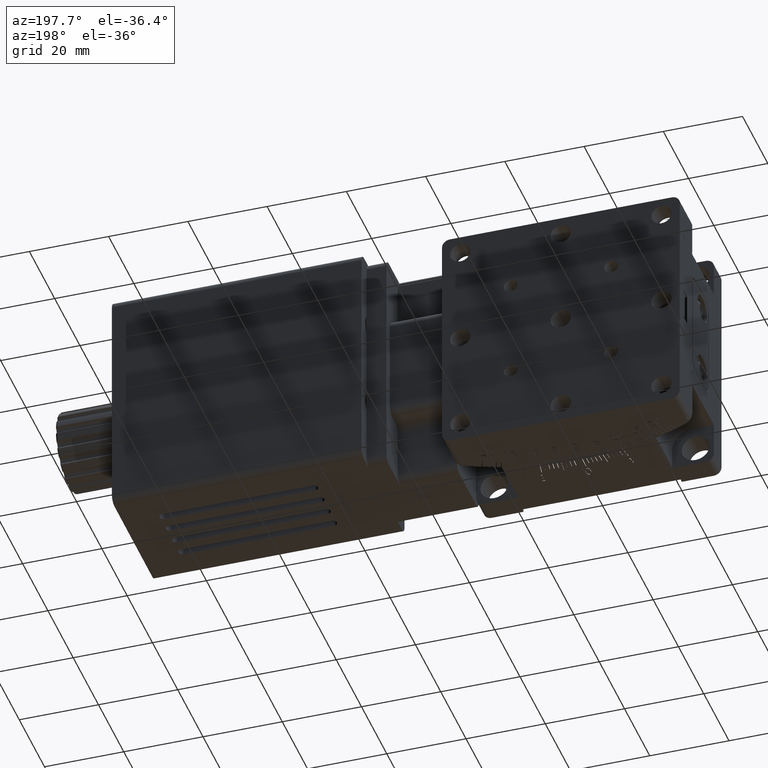
[diagram: clean part render]
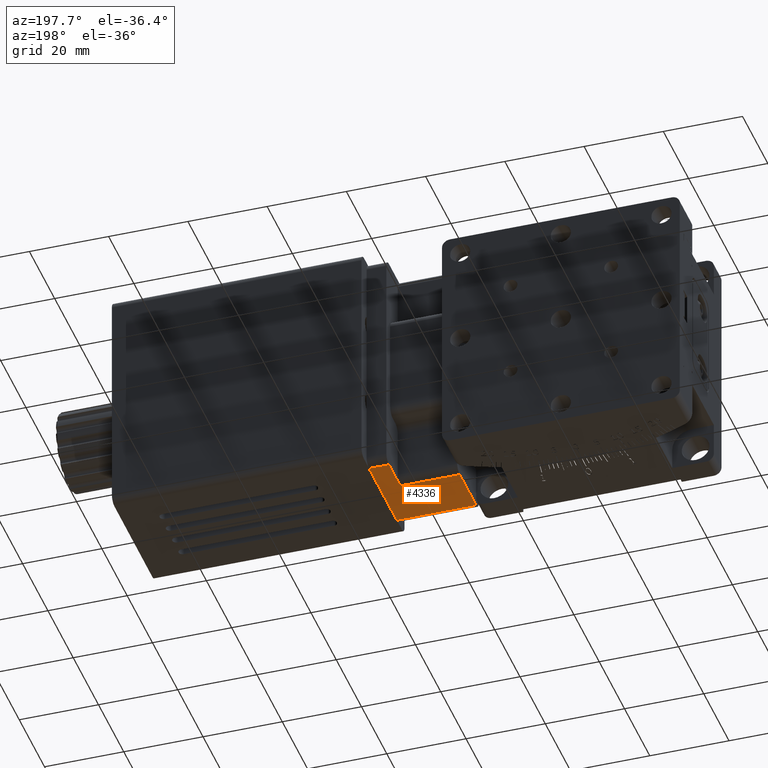
[diagram: same view with one face highlighted and labeled with its STEP entity id]
A machine part, auxiliary view. The second image highlights one B-rep face of the part: STEP entity #4336.
In plain terms, the highlighted planar face has unit normal (0, 0, 1).
Its self-contained STEP definition (entity closure, byte-faithful):
#115 = DIRECTION ( 'NONE',  ( 1.000000000000000000, 0.0000000000000000000, -0.0000000000000000000 ) ) ;
#376 = VERTEX_POINT ( 'NONE', #18331 ) ;
#1105 = CARTESIAN_POINT ( 'NONE',  ( 50.00000000000000000, 6.000000000000008900, -30.00000000000000400 ) ) ;
#1964 = CARTESIAN_POINT ( 'NONE',  ( 50.00000000000000000, 4.000000000000008900, -30.00000000000000400 ) ) ;
#2306 = CARTESIAN_POINT ( 'NONE',  ( 50.00000000000000000, 28.00000000000001100, -30.00000000000000400 ) ) ;
#2488 = CARTESIAN_POINT ( 'NONE',  ( 45.00000000000000000, 30.00000000000000000, -30.00000000000000400 ) ) ;
#4104 = VECTOR ( 'NONE', #20830, 1000.000000000000000 ) ;
#4336 = ADVANCED_FACE ( 'NONE', ( #24257 ), #29300, .F. ) ;
#5097 = VECTOR ( 'NONE', #22947, 1000.000000000000000 ) ;
#5346 = LINE ( 'NONE', #2488, #24827 ) ;
#5548 = CARTESIAN_POINT ( 'NONE',  ( 50.00000000000000000, 19.00000000000000400, -30.00000000000000400 ) ) ;
#6610 = LINE ( 'NONE', #1105, #21585 ) ;
#6905 = EDGE_LOOP ( 'NONE', ( #12067, #16648, #28736, #33233, #8471, #8499 ) ) ;
#7458 = VERTEX_POINT ( 'NONE', #8261 ) ;
#7856 = VERTEX_POINT ( 'NONE', #36660 ) ;
#8063 = DIRECTION ( 'NONE',  ( 0.0000000000000000000, 1.000000000000000000, 0.0000000000000000000 ) ) ;
#8261 = CARTESIAN_POINT ( 'NONE',  ( 50.00000000000000000, 28.00000000000000400, -30.00000000000000400 ) ) ;
#8471 = ORIENTED_EDGE ( 'NONE', *, *, #12482, .F. ) ;
#8499 = ORIENTED_EDGE ( 'NONE', *, *, #29377, .T. ) ;
#9039 = CARTESIAN_POINT ( 'NONE',  ( 45.00000000000000000, 28.00000000000000700, -30.00000000000000400 ) ) ;
#9100 = DIRECTION ( 'NONE',  ( 0.0000000000000000000, 0.0000000000000000000, 1.000000000000000000 ) ) ;
#9180 = CARTESIAN_POINT ( 'NONE',  ( 30.00000000000000000, 4.000000000000008900, -30.00000000000000400 ) ) ;
#11456 = EDGE_CURVE ( 'NONE', #376, #22805, #19552, .T. ) ;
#12067 = ORIENTED_EDGE ( 'NONE', *, *, #12726, .T. ) ;
#12482 = EDGE_CURVE ( 'NONE', #26774, #7458, #31237, .T. ) ;
#12726 = EDGE_CURVE ( 'NONE', #7856, #376, #15460, .T. ) ;
#15460 = LINE ( 'NONE', #9180, #4104 ) ;
#15670 = DIRECTION ( 'NONE',  ( -1.000000000000000000, -0.0000000000000000000, 0.0000000000000000000 ) ) ;
#16648 = ORIENTED_EDGE ( 'NONE', *, *, #11456, .T. ) ;
#17089 = CARTESIAN_POINT ( 'NONE',  ( 50.00000000000000000, 6.000000000000008900, -30.00000000000000400 ) ) ;
#18078 = EDGE_CURVE ( 'NONE', #22805, #20085, #5346, .T. ) ;
#18331 = CARTESIAN_POINT ( 'NONE',  ( 30.00000000000000000, 19.00000000000000400, -30.00000000000000400 ) ) ;
#19552 = LINE ( 'NONE', #5548, #28118 ) ;
#20085 = VERTEX_POINT ( 'NONE', #9039 ) ;
#20493 = DIRECTION ( 'NONE',  ( 1.000000000000000000, 0.0000000000000000000, -0.0000000000000000000 ) ) ;
#20830 = DIRECTION ( 'NONE',  ( 0.0000000000000000000, 1.000000000000000000, 0.0000000000000000000 ) ) ;
#21585 = VECTOR ( 'NONE', #15670, 1000.000000000000000 ) ;
#22805 = VERTEX_POINT ( 'NONE', #29877 ) ;
#22947 = DIRECTION ( 'NONE',  ( 1.000000000000000000, -0.0000000000000000000, -0.0000000000000000000 ) ) ;
#23569 = VECTOR ( 'NONE', #8063, 1000.000000000000000 ) ;
#23778 = CARTESIAN_POINT ( 'NONE',  ( 50.00000000000000000, 4.000000000000008900, -30.00000000000000400 ) ) ;
#24257 = FACE_OUTER_BOUND ( 'NONE', #6905, .T. ) ;
#24827 = VECTOR ( 'NONE', #25653, 1000.000000000000000 ) ;
#25653 = DIRECTION ( 'NONE',  ( -0.0000000000000000000, 1.000000000000000000, -0.0000000000000000000 ) ) ;
#26774 = VERTEX_POINT ( 'NONE', #17089 ) ;
#28118 = VECTOR ( 'NONE', #115, 1000.000000000000000 ) ;
#28736 = ORIENTED_EDGE ( 'NONE', *, *, #18078, .T. ) ;
#29300 = PLANE ( 'NONE',  #35988 ) ;
#29377 = EDGE_CURVE ( 'NONE', #26774, #7856, #6610, .T. ) ;
#29877 = CARTESIAN_POINT ( 'NONE',  ( 45.00000000000000000, 19.00000000000000400, -30.00000000000000400 ) ) ;
#31237 = LINE ( 'NONE', #1964, #23569 ) ;
#31461 = EDGE_CURVE ( 'NONE', #20085, #7458, #34496, .T. ) ;
#33233 = ORIENTED_EDGE ( 'NONE', *, *, #31461, .T. ) ;
#34496 = LINE ( 'NONE', #2306, #5097 ) ;
#35988 = AXIS2_PLACEMENT_3D ( 'NONE', #23778, #9100, #20493 ) ;
#36660 = CARTESIAN_POINT ( 'NONE',  ( 30.00000000000000000, 6.000000000000008900, -30.00000000000000400 ) ) ;